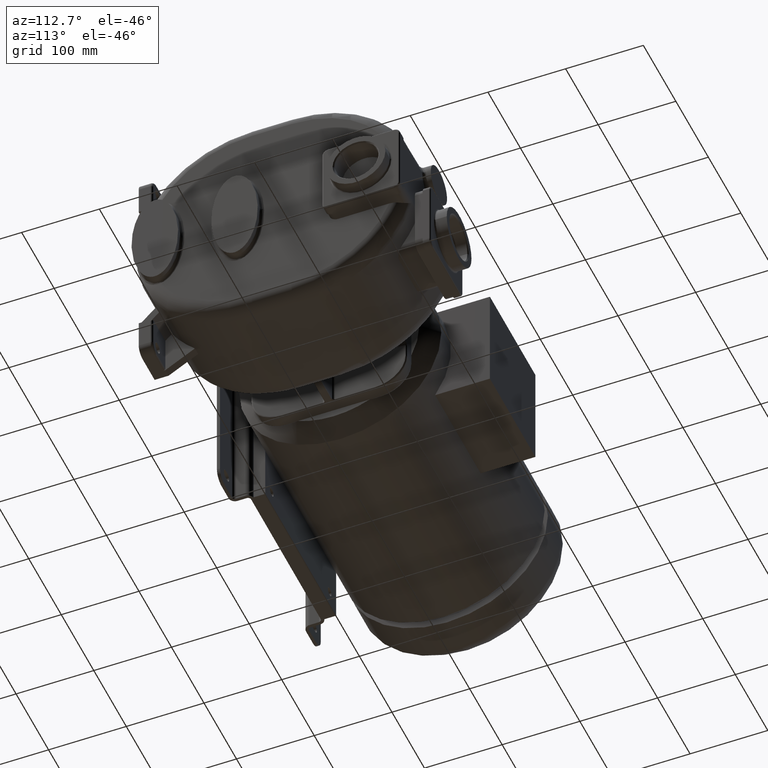
[diagram: clean part render]
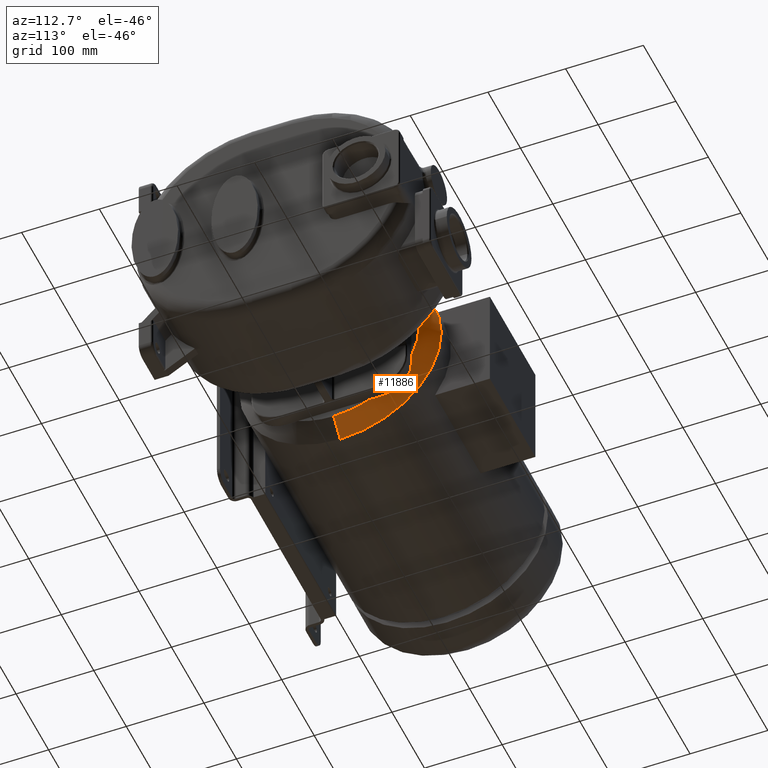
[diagram: same view with one face highlighted and labeled with its STEP entity id]
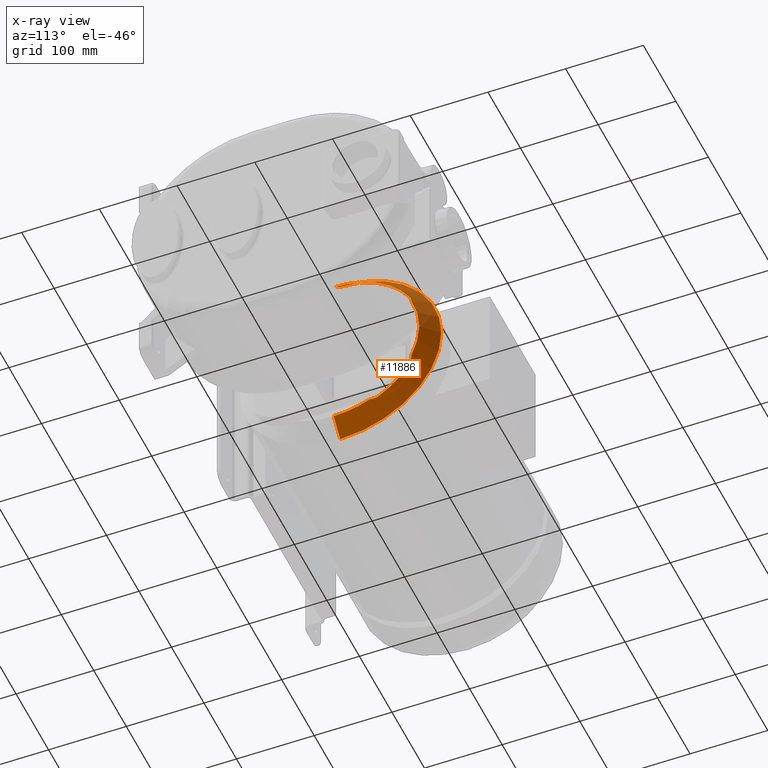
[diagram: x-ray of the same camera — body ghosted, the highlighted face saturated]
A machine part, auxiliary view. The second image highlights one B-rep face of the part: STEP entity #11886.
The next image is the same camera in x-ray: the body ghosted, the highlighted face saturated — about 16% of this face is hidden behind the body in this view.
In plain terms, the highlighted conical surface has half-angle 45 deg.
Its self-contained STEP definition (entity closure, byte-faithful):
#92=CARTESIAN_POINT('',(3.980000253557E2,0.E0,0.E0));
#93=DIRECTION('',(1.E0,0.E0,0.E0));
#94=DIRECTION('',(0.E0,0.E0,-1.E0));
#95=AXIS2_PLACEMENT_3D('',#92,#93,#94);
#129=CARTESIAN_POINT('',(4.16E2,-2.842170943040E-14,0.E0));
#130=DIRECTION('',(-1.E0,0.E0,0.E0));
#131=DIRECTION('',(0.E0,4.999205668996E-1,8.660712596495E-1));
#132=AXIS2_PLACEMENT_3D('',#129,#130,#131);
#134=CARTESIAN_POINT('',(4.16E2,5.599111441348E1,9.7E1));
#135=CARTESIAN_POINT('',(4.16E2,5.590075402214E1,9.705215854649E1));
#136=CARTESIAN_POINT('',(4.160027102226E2,5.571323436891E1,9.715693597073E1));
#137=CARTESIAN_POINT('',(4.160152510660E2,5.540990141341E1,9.731583908583E1));
#138=CARTESIAN_POINT('',(4.160361931013E2,5.508944801677E1,9.747356397452E1));
#139=CARTESIAN_POINT('',(4.160652862708E2,5.475410421393E1,9.762898695167E1));
#140=CARTESIAN_POINT('',(4.161018085251E2,5.440873979901E1,9.778009873646E1));
#141=CARTESIAN_POINT('',(4.161467976886E2,5.404252715975E1,9.793163244782E1));
#142=CARTESIAN_POINT('',(4.162027804882E2,5.364026484576E1,9.808879822E1));
#143=CARTESIAN_POINT('',(4.162728878764E2,5.318846036465E1,9.825490101181E1));
#144=CARTESIAN_POINT('',(4.163615858978E2,5.267083527114E1,9.843288277170E1));
#145=CARTESIAN_POINT('',(4.164709033224E2,5.208866735076E1,9.861869207462E1));
#146=CARTESIAN_POINT('',(4.166011089008E2,5.145032999669E1,9.880654583112E1));
#147=CARTESIAN_POINT('',(4.167523372894E2,5.076234448253E1,9.899192805085E1));
#148=CARTESIAN_POINT('',(4.169238038325E2,5.003350238998E1,9.917035988208E1));
#149=CARTESIAN_POINT('',(4.171147083113E2,4.927124490254E1,9.933826747740E1));
#150=CARTESIAN_POINT('',(4.173206651858E2,4.849529082347E1,9.949029991339E1));
#151=CARTESIAN_POINT('',(4.175379462591E2,4.771968980377E1,9.962374037146E1));
#152=CARTESIAN_POINT('',(4.177650178392E2,4.694982023212E1,9.973790730247E1));
#153=CARTESIAN_POINT('',(4.179208330020E2,4.644735669132E1,9.980043736419E1));
#154=CARTESIAN_POINT('',(4.18E2,4.619837505653E1,9.982842712475E1));
#156=DIRECTION('',(-7.071068099192E-1,-3.871631181647E-11,-7.071067524539E-1));
#157=VECTOR('',#156,2.828427124753E1);
#158=CARTESIAN_POINT('',(4.180000071520E2,9.636372921715E-9,-1.100000071512E2));
#159=LINE('',#158,#157);
#160=CARTESIAN_POINT('',(4.18E2,4.619837505653E1,-9.982842712475E1));
#161=CARTESIAN_POINT('',(4.179208332888E2,4.644735578930E1,-9.980043746559E1));
#162=CARTESIAN_POINT('',(4.177650184910E2,4.694981809300E1,-9.973790758642E1));
#163=CARTESIAN_POINT('',(4.175379467200E2,4.771968815463E1,-9.962374065704E1));
#164=CARTESIAN_POINT('',(4.173206654040E2,4.849529012112E1,-9.949029999936E1));
#165=CARTESIAN_POINT('',(4.171147105622E2,4.927123622051E1,-9.933826926549E1));
#166=CARTESIAN_POINT('',(4.169238040759E2,5.003350113406E1,-9.917036027392E1));
#167=CARTESIAN_POINT('',(4.167523348459E2,5.076235497425E1,-9.899192544198E1));
#168=CARTESIAN_POINT('',(4.166011051519E2,5.145034758825E1,-9.880654090437E1));
#169=CARTESIAN_POINT('',(4.164709001110E2,5.208868381295E1,-9.861868700329E1));
#170=CARTESIAN_POINT('',(4.163615838312E2,5.267084691572E1,-9.843287887374E1));
#171=CARTESIAN_POINT('',(4.162728868306E2,5.318846688176E1,-9.825489866611E1));
#172=CARTESIAN_POINT('',(4.162027799019E2,5.364026887094E1,-9.808879668484E1));
#173=CARTESIAN_POINT('',(4.161467972917E2,5.404253019860E1,-9.793163122350E1));
#174=CARTESIAN_POINT('',(4.161018081914E2,5.440874270458E1,-9.778009750173E1));
#175=CARTESIAN_POINT('',(4.160652860005E2,5.475410703125E1,-9.762898568099E1));
#176=CARTESIAN_POINT('',(4.160361929458E2,5.508945012621E1,-9.747356295977E1));
#177=CARTESIAN_POINT('',(4.160152510099E2,5.540990259265E1,-9.731583847767E1));
#178=CARTESIAN_POINT('',(4.160027102197E2,5.571323467068E1,-9.715693580014E1));
#179=CARTESIAN_POINT('',(4.16E2,5.590075408465E1,-9.705215851041E1));
#180=CARTESIAN_POINT('',(4.16E2,5.599111441348E1,-9.7E1));
#182=CARTESIAN_POINT('',(4.16E2,-2.842170943040E-14,0.E0));
#183=DIRECTION('',(-1.E0,0.E0,0.E0));
#184=DIRECTION('',(0.E0,8.660712596495E-1,-4.999205668996E-1));
#185=AXIS2_PLACEMENT_3D('',#182,#183,#184);
#187=CARTESIAN_POINT('',(4.16E2,9.7E1,-5.599111441348E1));
#188=CARTESIAN_POINT('',(4.16E2,9.705215813741E1,-5.590075473084E1));
#189=CARTESIAN_POINT('',(4.160027101905E2,9.715693402098E1,-5.571323781676E1));
#190=CARTESIAN_POINT('',(4.160152504211E2,9.731583209246E1,-5.540991497326E1));
#191=CARTESIAN_POINT('',(4.160361913115E2,9.747355229535E1,-5.508947229495E1));
#192=CARTESIAN_POINT('',(4.160652831608E2,9.762897233105E1,-5.475413663095E1));
#193=CARTESIAN_POINT('',(4.161018046916E2,9.778008455592E1,-5.440877317028E1));
#194=CARTESIAN_POINT('',(4.161467931403E2,9.793161841764E1,-5.404256198427E1));
#195=CARTESIAN_POINT('',(4.162027737676E2,9.808878062333E1,-5.364031098283E1));
#196=CARTESIAN_POINT('',(4.162728758643E2,9.825487406441E1,-5.318853522788E1));
#197=CARTESIAN_POINT('',(4.163615621016E2,9.843283788238E1,-5.267096936477E1));
#198=CARTESIAN_POINT('',(4.164708663091E2,9.861863362263E1,-5.208885709195E1));
#199=CARTESIAN_POINT('',(4.166010657220E2,9.880648908660E1,-5.145053261304E1));
#200=CARTESIAN_POINT('',(4.167523092815E2,9.899189817563E1,-5.076246469639E1));
#201=CARTESIAN_POINT('',(4.169238070751E2,9.917036480493E1,-5.003348613311E1));
#202=CARTESIAN_POINT('',(4.171147341305E2,9.933828796746E1,-4.927114534851E1));
#203=CARTESIAN_POINT('',(4.173206675977E2,9.949030084094E1,-4.849528309632E1));
#204=CARTESIAN_POINT('',(4.175379514914E2,9.962374361989E1,-4.771967107110E1));
#205=CARTESIAN_POINT('',(4.177650253674E2,9.973791058464E1,-4.694979552238E1));
#206=CARTESIAN_POINT('',(4.179208363191E2,9.980043853696E1,-4.644734625900E1));
#207=CARTESIAN_POINT('',(4.18E2,9.982842712475E1,-4.619837505653E1));
#209=CARTESIAN_POINT('',(4.18E2,9.982842712475E1,4.619837505653E1));
#210=CARTESIAN_POINT('',(4.179208366046E2,9.980043863789E1,4.644734536114E1));
#211=CARTESIAN_POINT('',(4.177650260142E2,9.973791086693E1,4.694979339884E1));
#212=CARTESIAN_POINT('',(4.175379519316E2,9.962374389388E1,4.771966949379E1));
#213=CARTESIAN_POINT('',(4.173206677938E2,9.949030091393E1,4.849528247184E1));
#214=CARTESIAN_POINT('',(4.171147363306E2,9.933828971141E1,4.927113686854E1));
#215=CARTESIAN_POINT('',(4.169238073981E2,9.917036526874E1,5.003348455626E1));
#216=CARTESIAN_POINT('',(4.167523068969E2,9.899189563502E1,5.076247492661E1));
#217=CARTESIAN_POINT('',(4.166010620240E2,9.880648422705E1,5.145054996532E1));
#218=CARTESIAN_POINT('',(4.164708631366E2,9.861862861247E1,5.208887335527E1));
#219=CARTESIAN_POINT('',(4.163615600643E2,9.843283403870E1,5.267098084594E1));
#220=CARTESIAN_POINT('',(4.162728748390E2,9.825487176384E1,5.318854161862E1));
#221=CARTESIAN_POINT('',(4.162027731954E2,9.808877912512E1,5.364031491089E1));
#222=CARTESIAN_POINT('',(4.161467927531E2,9.793161722345E1,5.404256494845E1));
#223=CARTESIAN_POINT('',(4.161018043643E2,9.778008334570E1,5.440877601845E1));
#224=CARTESIAN_POINT('',(4.160652828947E2,9.762897108046E1,5.475413940383E1));
#225=CARTESIAN_POINT('',(4.160361911584E2,9.747355129602E1,5.508947437230E1));
#226=CARTESIAN_POINT('',(4.160152503660E2,9.731583149471E1,5.540991613222E1));
#227=CARTESIAN_POINT('',(4.160027101878E2,9.715693385556E1,5.571323810915E1));
#228=CARTESIAN_POINT('',(4.16E2,9.705215810305E1,5.590075479036E1));
#229=CARTESIAN_POINT('',(4.16E2,9.7E1,5.599111441348E1));
#253=CARTESIAN_POINT('',(4.18E2,-2.842170943040E-14,0.E0));
#254=DIRECTION('',(1.E0,0.E0,0.E0));
#255=DIRECTION('',(0.E0,9.075309786711E-1,-4.199851458710E-1));
#256=AXIS2_PLACEMENT_3D('',#253,#254,#255);
#280=CARTESIAN_POINT('',(4.18E2,-2.842170943040E-14,0.E0));
#281=DIRECTION('',(1.E0,0.E0,0.E0));
#282=DIRECTION('',(0.E0,0.E0,-1.E0));
#283=AXIS2_PLACEMENT_3D('',#280,#281,#282);
#317=DIRECTION('',(-7.071068099192E-1,3.871589807348E-11,7.071067524539E-1));
#318=VECTOR('',#317,2.828427124753E1);
#319=CARTESIAN_POINT('',(4.180000071520E2,-9.636363708887E-9,1.100000071512E2));
#320=LINE('',#319,#318);
#446=CARTESIAN_POINT('',(4.18E2,-2.842170943040E-14,0.E0));
#447=DIRECTION('',(1.E0,0.E0,0.E0));
#448=DIRECTION('',(0.E0,4.199851458710E-1,9.075309786711E-1));
#449=AXIS2_PLACEMENT_3D('',#446,#447,#448);
#10481=CARTESIAN_POINT('',(3.980000253557E2,1.592040838892E-14,1.3E2));
#10482=CARTESIAN_POINT('',(3.980000253557E2,-3.184081677783E-14,-1.3E2));
#10483=VERTEX_POINT('',#10481);
#10484=VERTEX_POINT('',#10482);
#10485=CARTESIAN_POINT('',(4.180000071520E2,9.636372921715E-9,
-1.100000071512E2));
#10486=VERTEX_POINT('',#10485);
#10487=CARTESIAN_POINT('',(4.180000071520E2,-9.636363708887E-9,
1.100000071512E2));
#10488=VERTEX_POINT('',#10487);
#11195=CARTESIAN_POINT('',(4.18E2,4.619837505653E1,9.982842712475E1));
#11197=VERTEX_POINT('',#11195);
#11202=CARTESIAN_POINT('',(4.18E2,4.619837505653E1,-9.982842712475E1));
#11204=VERTEX_POINT('',#11202);
#11206=CARTESIAN_POINT('',(4.18E2,9.982842712475E1,4.619837505653E1));
#11207=CARTESIAN_POINT('',(4.18E2,9.982842712475E1,-4.619837505653E1));
#11208=VERTEX_POINT('',#11206);
#11209=VERTEX_POINT('',#11207);
#11210=CARTESIAN_POINT('',(4.16E2,5.599111441348E1,9.7E1));
#11211=CARTESIAN_POINT('',(4.16E2,9.7E1,5.599111441348E1));
#11212=VERTEX_POINT('',#11210);
#11213=VERTEX_POINT('',#11211);
#11214=CARTESIAN_POINT('',(4.16E2,9.7E1,-5.599111441348E1));
#11215=CARTESIAN_POINT('',(4.16E2,5.599111441348E1,-9.7E1));
#11216=VERTEX_POINT('',#11214);
#11217=VERTEX_POINT('',#11215);
#11856=CARTESIAN_POINT('',(4.080000117033E2,-2.842170943040E-14,0.E0));
#11857=DIRECTION('',(-1.E0,0.E0,0.E0));
#11858=DIRECTION('',(0.E0,0.E0,-1.E0));
#11859=AXIS2_PLACEMENT_3D('',#11856,#11857,#11858);
#11860=CONICAL_SURFACE('',#11859,1.200000117020E2,4.500000558760E1);
#11862=ORIENTED_EDGE('',*,*,#11861,.F.);
#11864=ORIENTED_EDGE('',*,*,#11863,.T.);
#11866=ORIENTED_EDGE('',*,*,#11865,.T.);
#11868=ORIENTED_EDGE('',*,*,#11867,.T.);
#11869=ORIENTED_EDGE('',*,*,#11834,.F.);
#11871=ORIENTED_EDGE('',*,*,#11870,.F.);
#11873=ORIENTED_EDGE('',*,*,#11872,.T.);
#11875=ORIENTED_EDGE('',*,*,#11874,.T.);
#11877=ORIENTED_EDGE('',*,*,#11876,.F.);
#11879=ORIENTED_EDGE('',*,*,#11878,.T.);
#11881=ORIENTED_EDGE('',*,*,#11880,.T.);
#11883=ORIENTED_EDGE('',*,*,#11882,.T.);
#11884=EDGE_LOOP('',(#11862,#11864,#11866,#11868,#11869,#11871,#11873,#11875,
#11877,#11879,#11881,#11883));
#11885=FACE_OUTER_BOUND('',#11884,.F.);
#11886=ADVANCED_FACE('',(#11885),#11860,.T.);
#96=CIRCLE('',#95,1.3E2);
#133=CIRCLE('',#132,1.120000218449E2);
#155=B_SPLINE_CURVE_WITH_KNOTS('',3,(#134,#135,#136,#137,#138,#139,#140,#141,
#142,#143,#144,#145,#146,#147,#148,#149,#150,#151,#152,#153,#154),.UNSPECIFIED.,
.F.,.F.,(4,1,1,1,1,1,1,1,1,1,1,1,1,1,1,1,1,1,4),(0.E0,5.555555555556E-2,
1.111111111111E-1,1.666666666667E-1,2.222222222222E-1,2.777777777778E-1,
3.333333333333E-1,3.888888888889E-1,4.444444444444E-1,5.E-1,5.555555555556E-1,
6.111111111111E-1,6.666666666667E-1,7.222222222222E-1,7.777777777778E-1,
8.333333333333E-1,8.888888888889E-1,9.444444444444E-1,1.E0),.UNSPECIFIED.);
#181=B_SPLINE_CURVE_WITH_KNOTS('',3,(#160,#161,#162,#163,#164,#165,#166,#167,
#168,#169,#170,#171,#172,#173,#174,#175,#176,#177,#178,#179,#180),.UNSPECIFIED.,
.F.,.F.,(4,1,1,1,1,1,1,1,1,1,1,1,1,1,1,1,1,1,4),(0.E0,5.555555555556E-2,
1.111111111111E-1,1.666666666667E-1,2.222222222222E-1,2.777777777778E-1,
3.333333333333E-1,3.888888888889E-1,4.444444444444E-1,5.E-1,5.555555555556E-1,
6.111111111111E-1,6.666666666667E-1,7.222222222222E-1,7.777777777778E-1,
8.333333333333E-1,8.888888888889E-1,9.444444444444E-1,1.E0),.UNSPECIFIED.);
#186=CIRCLE('',#185,1.120000218449E2);
#208=B_SPLINE_CURVE_WITH_KNOTS('',3,(#187,#188,#189,#190,#191,#192,#193,#194,
#195,#196,#197,#198,#199,#200,#201,#202,#203,#204,#205,#206,#207),.UNSPECIFIED.,
.F.,.F.,(4,1,1,1,1,1,1,1,1,1,1,1,1,1,1,1,1,1,4),(0.E0,5.555555555556E-2,
1.111111111111E-1,1.666666666667E-1,2.222222222222E-1,2.777777777778E-1,
3.333333333333E-1,3.888888888889E-1,4.444444444444E-1,5.E-1,5.555555555556E-1,
6.111111111111E-1,6.666666666667E-1,7.222222222222E-1,7.777777777778E-1,
8.333333333333E-1,8.888888888889E-1,9.444444444444E-1,1.E0),.UNSPECIFIED.);
#230=B_SPLINE_CURVE_WITH_KNOTS('',3,(#209,#210,#211,#212,#213,#214,#215,#216,
#217,#218,#219,#220,#221,#222,#223,#224,#225,#226,#227,#228,#229),.UNSPECIFIED.,
.F.,.F.,(4,1,1,1,1,1,1,1,1,1,1,1,1,1,1,1,1,1,4),(0.E0,5.555555555556E-2,
1.111111111111E-1,1.666666666667E-1,2.222222222222E-1,2.777777777778E-1,
3.333333333333E-1,3.888888888889E-1,4.444444444444E-1,5.E-1,5.555555555556E-1,
6.111111111111E-1,6.666666666667E-1,7.222222222222E-1,7.777777777778E-1,
8.333333333333E-1,8.888888888889E-1,9.444444444444E-1,1.E0),.UNSPECIFIED.);
#257=CIRCLE('',#256,1.100000214548E2);
#284=CIRCLE('',#283,1.100000214548E2);
#450=CIRCLE('',#449,1.100000214548E2);
#11834=EDGE_CURVE('',#10484,#10483,#96,.T.);
#11861=EDGE_CURVE('',#11212,#11213,#133,.T.);
#11863=EDGE_CURVE('',#11212,#11197,#155,.T.);
#11865=EDGE_CURVE('',#11197,#10488,#450,.T.);
#11867=EDGE_CURVE('',#10488,#10483,#320,.T.);
#11870=EDGE_CURVE('',#10486,#10484,#159,.T.);
#11872=EDGE_CURVE('',#10486,#11204,#284,.T.);
#11874=EDGE_CURVE('',#11204,#11217,#181,.T.);
#11876=EDGE_CURVE('',#11216,#11217,#186,.T.);
#11878=EDGE_CURVE('',#11216,#11209,#208,.T.);
#11880=EDGE_CURVE('',#11209,#11208,#257,.T.);
#11882=EDGE_CURVE('',#11208,#11213,#230,.T.);